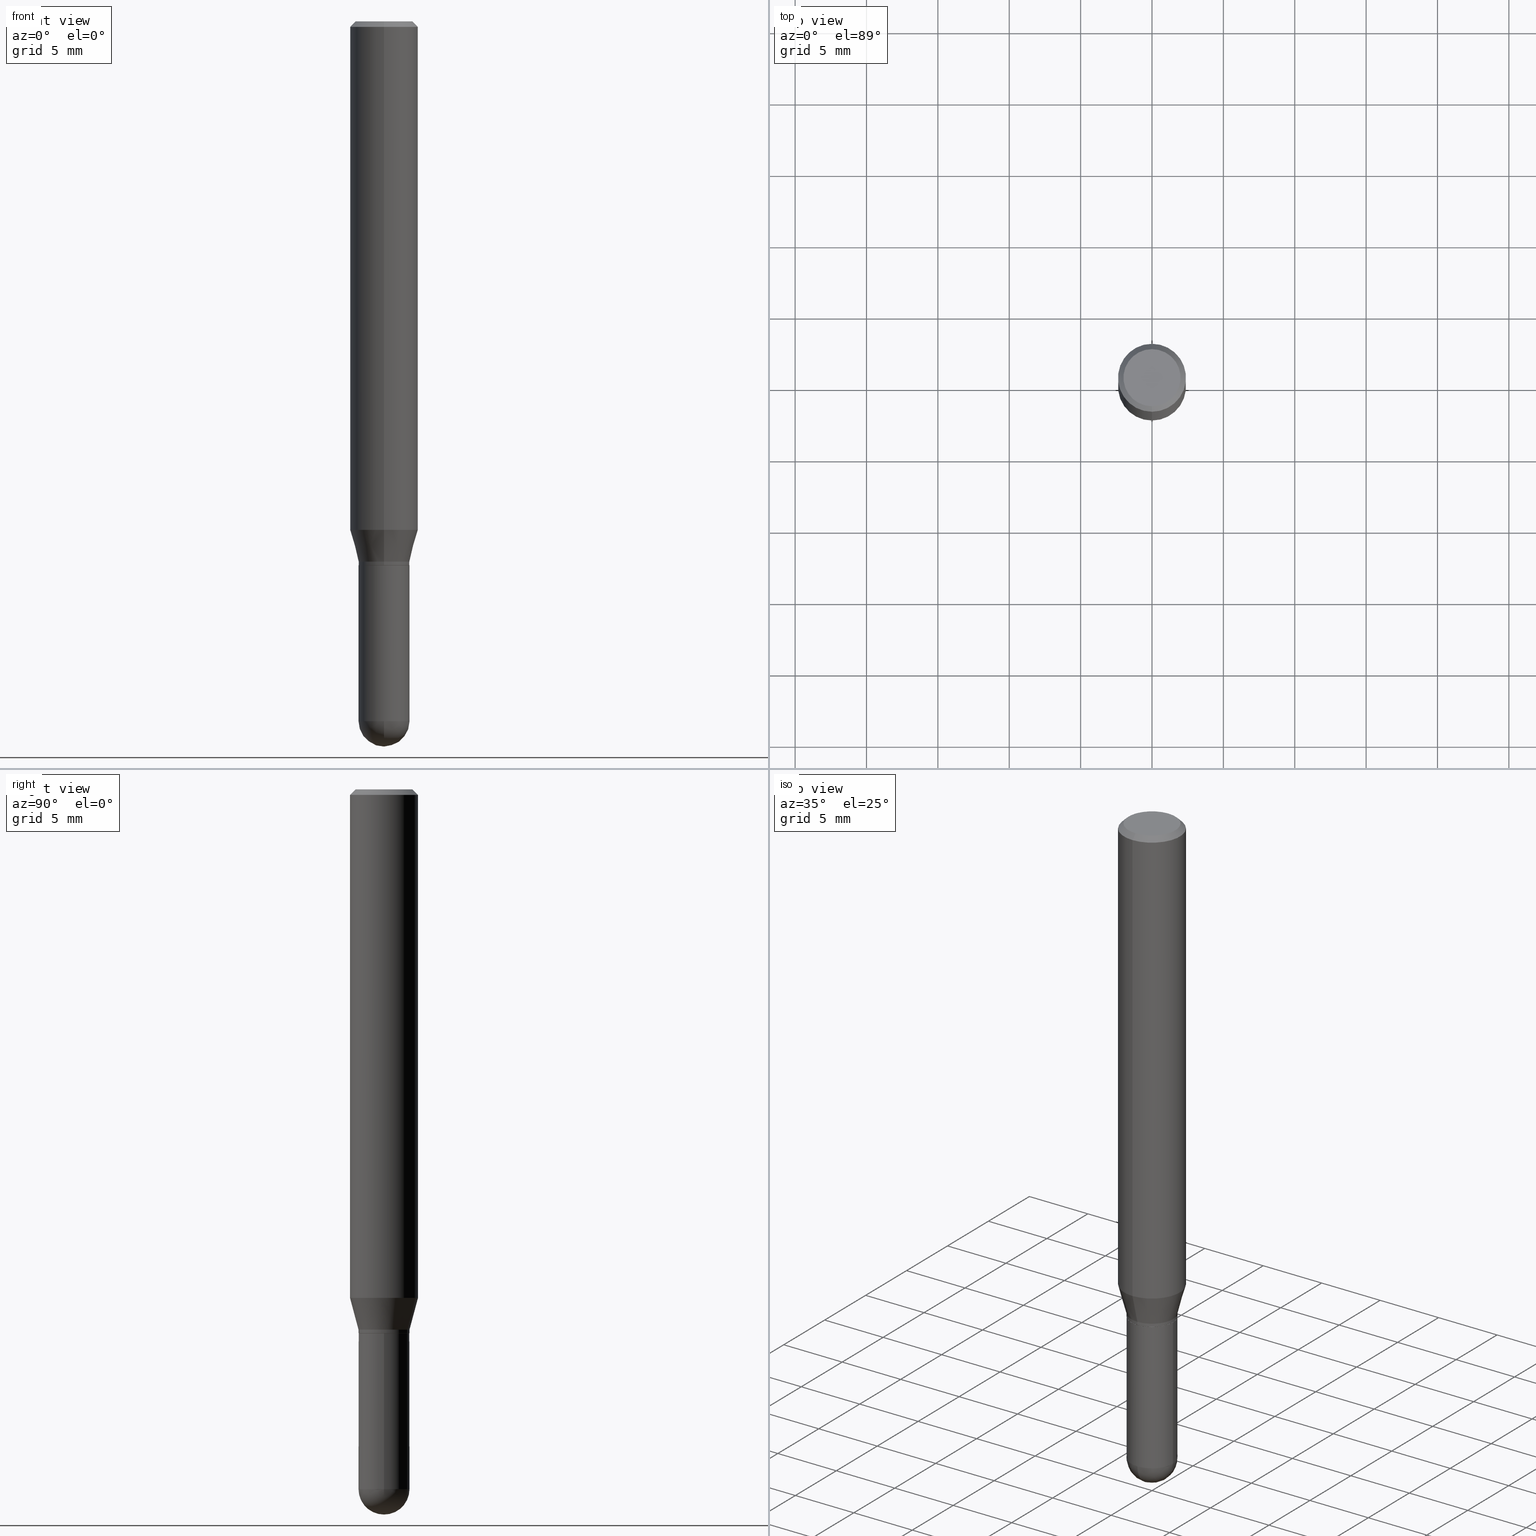
[diagram: canonical four-view strip — front | top / right | iso, engineering-drawing reading convention]
A machine part, canonical four-view strip (front | top / right | iso — engineering-drawing reading convention). The complete STEP part file that produces these views, byte-faithful:
ISO-10303-21;
HEADER;
FILE_DESCRIPTION (( 'STEP AP203' ),
    '1' );
FILE_NAME ('31138.STEP',
    '2024-03-08T15:53:01',
    ( '' ),
    ( '' ),
    'SwSTEP 2.0',
    'SolidWorks 2023',
    '' );
FILE_SCHEMA (( 'CONFIG_CONTROL_DESIGN' ));
ENDSEC;

DATA;
#1 = DIRECTION ( 'NONE',  ( -1.000000000000000000, 6.982962677686265922E-15, -4.883557194083112340E-29 ) ) ;
#2 = ORIENTED_EDGE ( 'NONE', *, *, #352, .F. ) ;
#3 = EDGE_CURVE ( 'NONE', #335, #280, #490, .T. ) ;
#4 = DIRECTION ( 'NONE',  ( -6.982962677686265922E-15, -1.000000000000000000, 3.491768147958502402E-15 ) ) ;
#5 = DIRECTION ( 'NONE',  ( 6.982962677686265922E-15, 1.000000000000000000, -3.483106191921935160E-15 ) ) ;
#6 = ORIENTED_EDGE ( 'NONE', *, *, #220, .T. ) ;
#7 = AXIS2_PLACEMENT_3D ( 'NONE', #18, #463, #422 ) ;
#8 = CARTESIAN_POINT ( 'NONE',  ( 6.546527510330878985E-16, 0.09374999999999995837, -0.01500000000000039496 ) ) ;
#9 = ORIENTED_EDGE ( 'NONE', *, *, #3, .T. ) ;
#10 = ADVANCED_FACE ( 'NONE', ( #451 ), #197, .T. ) ;
#11 = CARTESIAN_POINT ( 'NONE',  ( 3.666680158411255579E-29, -5.235906337863774316E-15, -1.499500000000000055 ) ) ;
#12 = ORIENTED_EDGE ( 'NONE', *, *, #416, .T. ) ;
#13 = AXIS2_PLACEMENT_3D ( 'NONE', #491, #439, #415 ) ;
#14 = CYLINDRICAL_SURFACE ( 'NONE', #477, 0.07030000000000004301 ) ;
#15 = ORIENTED_EDGE ( 'NONE', *, *, #340, .T. ) ;
#16 = AXIS2_PLACEMENT_3D ( 'NONE', #264, #382, #154 ) ;
#17 = VERTEX_POINT ( 'NONE', #65 ) ;
#18 = CARTESIAN_POINT ( 'NONE',  ( 1.673398044682497217E-45, -2.389560869611909586E-31, -6.843412186484920368E-17 ) ) ;
#19 = APPLICATION_PROTOCOL_DEFINITION ( 'international standard', 'config_control_design', 1994, #119 ) ;
#20 = DIRECTION ( 'NONE',  ( -2.445468806185136597E-29, 3.491481338843145583E-15, 1.000000000000000000 ) ) ;
#21 = CIRCLE ( 'NONE', #164, 0.06980000000000005644 ) ;
#22 = ORIENTED_EDGE ( 'NONE', *, *, #68, .F. ) ;
#23 = PERSON_AND_ORGANIZATION ( #307, #146 ) ;
#24 = CARTESIAN_POINT ( 'NONE',  ( 0.07030000000000005689, -5.728124284506063124E-15, -1.499999999999999778 ) ) ;
#25 = DIRECTION ( 'NONE',  ( -6.982962677686265133E-15, -1.000000000000000000, 3.885985766236506175E-15 ) ) ;
#26 = DATE_AND_TIME ( #234, #484 ) ;
#27 = CARTESIAN_POINT ( 'NONE',  ( -0.07030000000000007077, -5.487855230675816416E-15, -1.499999999999999778 ) ) ;
#28 = CALENDAR_DATE ( 2024, 8, 3 ) ;
#29 = LINE ( 'NONE', #155, #54 ) ;
#30 = VECTOR ( 'NONE', #46, 39.37007874015748143 ) ;
#31 = APPROVAL_PERSON_ORGANIZATION ( #458, #343, #271 ) ;
#32 = EDGE_CURVE ( 'NONE', #335, #149, #497, .T. ) ;
#33 = DIRECTION ( 'NONE',  ( 6.982962677686266711E-15, 1.000000000000000000, 0.000000000000000000 ) ) ;
#34 = CIRCLE ( 'NONE', #16, 0.07875000000000001443 ) ;
#35 = CARTESIAN_POINT ( 'NONE',  ( -6.431716872910806895E-16, -0.09375000000000005551, -0.01499999999999974097 ) ) ;
#36 = ORIENTED_EDGE ( 'NONE', *, *, #301, .T. ) ;
#37 = CARTESIAN_POINT ( 'NONE',  ( 4.977351863999869690E-16, 0.06979999999999481064, -1.500000000000000222 ) ) ;
#38 = ADVANCED_FACE ( 'NONE', ( #170 ), #481, .T. ) ;
#39 = AXIS2_PLACEMENT_3D ( 'NONE', #208, #246, #4 ) ;
#40 = ORIENTED_EDGE ( 'NONE', *, *, #295, .T. ) ;
#41 = CARTESIAN_POINT ( 'NONE',  ( 0.07030000000000004301, -4.909022762413449473E-16, 3.427952273384545239E-30 ) ) ;
#42 = DIRECTION ( 'NONE',  ( -6.982962677686265922E-15, -1.000000000000000000, 3.483106191921935160E-15 ) ) ;
#43 = VERTEX_POINT ( 'NONE', #449 ) ;
#44 = AXIS2_PLACEMENT_3D ( 'NONE', #58, #20, #188 ) ;
#45 = ORIENTED_EDGE ( 'NONE', *, *, #356, .T. ) ;
#46 = DIRECTION ( 'NONE',  ( -4.937700262164674260E-15, -0.7071067811865632269, 0.7071067811865319186 ) ) ;
#47 = CLOSED_SHELL ( 'NONE', ( #38, #396, #381, #199, #174, #10, #460, #273, #319, #129, #97, #298 ) ) ;
#48 = ORIENTED_EDGE ( 'NONE', *, *, #447, .F. ) ;
#49 = DIRECTION ( 'NONE',  ( 1.000000000000000000, -6.982962677686261189E-15, 0.000000000000000000 ) ) ;
#50 = ORIENTED_EDGE ( 'NONE', *, *, #90, .T. ) ;
#51 = EDGE_LOOP ( 'NONE', ( #163, #12, #441, #410 ) ) ;
#52 = CIRCLE ( 'NONE', #121, 0.06980000000000005644 ) ;
#53 = VERTEX_POINT ( 'NONE', #445 ) ;
#54 = VECTOR ( 'NONE', #194, 39.37007874015748143 ) ;
#55 = CONICAL_SURFACE ( 'NONE', #169, 0.07029999999999970994, 0.2617993877991510732 ) ;
#56 = DIRECTION ( 'NONE',  ( -2.445468806185136597E-29, 3.491481338843145583E-15, 1.000000000000000000 ) ) ;
#57 = CALENDAR_DATE ( 2024, 8, 3 ) ;
#58 = CARTESIAN_POINT ( 'NONE',  ( 0.000000000000000000, 0.000000000000000000, 0.000000000000000000 ) ) ;
#59 = CC_DESIGN_PERSON_AND_ORGANIZATION_ASSIGNMENT ( #228, #380, ( #92 ) ) ;
#60 = CARTESIAN_POINT ( 'NONE',  ( -6.546527510330530901E-16, -0.09375000000000488498, -1.402483408562508638 ) ) ;
#61 = EDGE_LOOP ( 'NONE', ( #257, #136, #248, #210 ) ) ;
#62 = PERSON_AND_ORGANIZATION ( #307, #146 ) ;
#63 = CARTESIAN_POINT ( 'NONE',  ( 4.719021155295457704E-29, -6.737511539565617508E-15, -1.929699999999999971 ) ) ;
#64 = MECHANICAL_CONTEXT ( 'NONE', #388, 'mechanical' ) ;
#65 = CARTESIAN_POINT ( 'NONE',  ( 5.828226790072563992E-16, 0.07029999999999450577, -1.489999999999999991 ) ) ;
#66 = AXIS2_PLACEMENT_3D ( 'NONE', #489, #368, #49 ) ;
#67 = APPROVAL_STATUS ( 'not_yet_approved' ) ;
#68 = EDGE_CURVE ( 'NONE', #171, #455, #138, .T. ) ;
#69 = DATE_AND_TIME ( #116, #353 ) ;
#70 = DIRECTION ( 'NONE',  ( 1.000000000000000000, -6.982962677686265922E-15, 4.883557194083112340E-29 ) ) ;
#71 = DIRECTION ( 'NONE',  ( 2.445268528450320675E-29, -3.491768147958502797E-15, -1.000000000000000000 ) ) ;
#72 = ORIENTED_EDGE ( 'NONE', *, *, #385, .F. ) ;
#73 = CARTESIAN_POINT ( 'NONE',  ( 4.909022762413816294E-16, 0.07029999999999482496, -1.500000000000000222 ) ) ;
#74 = PLANE ( 'NONE',  #478 ) ;
#75 = CC_DESIGN_PERSON_AND_ORGANIZATION_ASSIGNMENT ( #503, #304, ( #227 ) ) ;
#76 = DIRECTION ( 'NONE',  ( 6.982962677686265922E-15, 1.000000000000000000, -3.491768147958502797E-15 ) ) ;
#77 = DIRECTION ( 'NONE',  ( -1.000000000000000000, 7.105427357601001070E-15, -4.926315508542082329E-29 ) ) ;
#78 = CARTESIAN_POINT ( 'NONE',  ( 6.022805309504406221E-16, 0.07875000000000001443, -3.434108635165813684E-16 ) ) ;
#79 = DIRECTION ( 'NONE',  ( -7.105427357601001859E-15, -1.000000000000000000, 0.000000000000000000 ) ) ;
#80 = ADVANCED_FACE ( 'NONE', ( #336 ), #14, .T. ) ;
#81 = DIRECTION ( 'NONE',  ( -2.445268528450320675E-29, 3.491768147958502797E-15, 1.000000000000000000 ) ) ;
#82 = AXIS2_PLACEMENT_3D ( 'NONE', #316, #71, #236 ) ;
#83 = VERTEX_POINT ( 'NONE', #374 ) ;
#84 = VERTEX_POINT ( 'NONE', #178 ) ;
#85 = CC_DESIGN_DATE_AND_TIME_ASSIGNMENT ( #349, #270, ( #241 ) ) ;
#86 = EDGE_LOOP ( 'NONE', ( #475, #330, #373, #15, #339 ) ) ;
#87 = DIRECTION ( 'NONE',  ( -2.445468806185136597E-29, 3.491481338843145583E-15, 1.000000000000000000 ) ) ;
#88 = FACE_OUTER_BOUND ( 'NONE', #203, .T. ) ;
#89 = ORIENTED_EDGE ( 'NONE', *, *, #217, .T. ) ;
#90 = EDGE_CURVE ( 'NONE', #53, #132, #34, .T. ) ;
#91 = CIRCLE ( 'NONE', #493, 0.07030000000000004301 ) ;
#92 = PRODUCT_DEFINITION_FORMATION_WITH_SPECIFIED_SOURCE ( 'ANY', '', #426, .NOT_KNOWN. ) ;
#93 = CARTESIAN_POINT ( 'NONE',  ( 3.666680158411255579E-29, -5.235906337863774316E-15, -1.499500000000000055 ) ) ;
#94 = CARTESIAN_POINT ( 'NONE',  ( 3.668203209277704335E-29, -5.237222008264717388E-15, -1.499999999999999778 ) ) ;
#95 = ORIENTED_EDGE ( 'NONE', *, *, #470, .F. ) ;
#96 = CLOSED_SHELL ( 'NONE', ( #80, #488, #502, #162, #378 ) ) ;
#97 = ADVANCED_FACE ( 'NONE', ( #326 ), #411, .T. ) ;
#98 = DIRECTION ( 'NONE',  ( -6.982962677686265922E-15, -1.000000000000000000, 3.483106191921935160E-15 ) ) ;
#99 = VERTEX_POINT ( 'NONE', #230 ) ;
#100 = CIRCLE ( 'NONE', #473, 0.07029999999999998750 ) ;
#101 = CARTESIAN_POINT ( 'NONE',  ( 0.000000000000000000, 0.000000000000000000, 0.000000000000000000 ) ) ;
#102 = CARTESIAN_POINT ( 'NONE',  ( -4.909022762413433696E-16, -0.07029999999999984872, 2.454713008014822219E-16 ) ) ;
#103 = DIRECTION ( 'NONE',  ( -6.982962677686265922E-15, -1.000000000000000000, 3.913822340493210566E-15 ) ) ;
#104 = CIRCLE ( 'NONE', #443, 0.07030000000000002913 ) ;
#105 = AXIS2_PLACEMENT_3D ( 'NONE', #355, #1, #159 ) ;
#106 = EDGE_CURVE ( 'NONE', #499, #117, #29, .T. ) ;
#107 = CARTESIAN_POINT ( 'NONE',  ( 0.000000000000000000, 0.000000000000000000, 0.000000000000000000 ) ) ;
#108 = ORIENTED_EDGE ( 'NONE', *, *, #106, .T. ) ;
#109 =( NAMED_UNIT ( * ) PLANE_ANGLE_UNIT ( ) SI_UNIT ( $, .RADIAN. ) );
#110 = CIRCLE ( 'NONE', #392, 0.07030000000000005689 ) ;
#111 = VECTOR ( 'NONE', #487, 39.37007874015748143 ) ;
#112 = LINE ( 'NONE', #8, #402 ) ;
#113 = COORDINATED_UNIVERSAL_TIME_OFFSET ( 5, 0, .BEHIND. ) ;
#114 = ORIENTED_EDGE ( 'NONE', *, *, #508, .F. ) ;
#115 = EDGE_CURVE ( 'NONE', #99, #43, #104, .T. ) ;
#116 = CALENDAR_DATE ( 2024, 8, 3 ) ;
#117 = VERTEX_POINT ( 'NONE', #196 ) ;
#118 = EDGE_CURVE ( 'NONE', #229, #171, #322, .T. ) ;
#119 = APPLICATION_CONTEXT ( 'configuration controlled 3d designs of mechanical parts and assemblies' ) ;
#120 = CARTESIAN_POINT ( 'NONE',  ( -6.546527510330875041E-16, -0.09375000000000001388, 3.273532638711096618E-16 ) ) ;
#121 = AXIS2_PLACEMENT_3D ( 'NONE', #387, #348, #501 ) ;
#122 = CARTESIAN_POINT ( 'NONE',  ( 4.755767650741496407E-29, -6.684888466606255625E-15, -1.929699999999999971 ) ) ;
#123 = DIMENSIONAL_EXPONENTS ( 1.000000000000000000, 0.000000000000000000, 0.000000000000000000, 0.000000000000000000, 0.000000000000000000, 0.000000000000000000, 0.000000000000000000 ) ;
#124 = EDGE_LOOP ( 'NONE', ( #437, #276, #242, #89 ) ) ;
#125 = DIRECTION ( 'NONE',  ( -1.000000000000000000, 6.982962677686265922E-15, -4.883557194083112340E-29 ) ) ;
#126 = AXIS2_PLACEMENT_3D ( 'NONE', #161, #471, #288 ) ;
#127 = EDGE_LOOP ( 'NONE', ( #95, #509, #324, #290 ) ) ;
#128 = FACE_OUTER_BOUND ( 'NONE', #486, .T. ) ;
#129 = ADVANCED_FACE ( 'NONE', ( #277 ), #74, .F. ) ;
#130 = LINE ( 'NONE', #35, #459 ) ;
#131 = CARTESIAN_POINT ( 'NONE',  ( -4.995115432393033060E-16, -0.07030000000000674598, -1.929699999999999527 ) ) ;
#132 = VERTEX_POINT ( 'NONE', #78 ) ;
#133 = ORIENTED_EDGE ( 'NONE', *, *, #115, .F. ) ;
#134 = APPROVAL_DATE_TIME ( #476, #291 ) ;
#135 = CARTESIAN_POINT ( 'NONE',  ( -4.874107949024650610E-16, -0.06980000000000530225, -1.499999999999999556 ) ) ;
#136 = ORIENTED_EDGE ( 'NONE', *, *, #447, .T. ) ;
#137 = VECTOR ( 'NONE', #386, 39.37007874015748143 ) ;
#138 = CIRCLE ( 'NONE', #180, 0.09375000000000001388 ) ;
#139 = ORIENTED_EDGE ( 'NONE', *, *, #118, .T. ) ;
#140 = CARTESIAN_POINT ( 'NONE',  ( 4.719021155295457704E-29, -6.737511539565617508E-15, -1.929699999999999971 ) ) ;
#141 = CARTESIAN_POINT ( 'NONE',  ( 0.000000000000000000, 0.000000000000000000, 0.000000000000000000 ) ) ;
#142 = CARTESIAN_POINT ( 'NONE',  ( -0.07030000000000004301, 4.995115432393507363E-16, -3.458011368449201672E-30 ) ) ;
#143 = FACE_OUTER_BOUND ( 'NONE', #279, .T. ) ;
#144 = SECURITY_CLASSIFICATION_LEVEL ( 'unclassified' ) ;
#145 = CARTESIAN_POINT ( 'NONE',  ( 6.661338147750938256E-16, 0.09375000000000001388, -3.273532638711096618E-16 ) ) ;
#146 = ORGANIZATION ( 'UNSPECIFIED', 'UNSPECIFIED', '' ) ;
#147 = LOCAL_TIME ( 10, 53, 1.000000000000000000, #311 ) ;
#148 = DIRECTION ( 'NONE',  ( 1.000000000000000000, -6.982962677686268288E-15, 4.876176775795936353E-29 ) ) ;
#149 = VERTEX_POINT ( 'NONE', #131 ) ;
#150 = VECTOR ( 'NONE', #303, 39.37007874015748143 ) ;
#151 = AXIS2_PLACEMENT_3D ( 'NONE', #364, #87, #167 ) ;
#152 = DIRECTION ( 'NONE',  ( -2.445268528450320395E-29, 3.491768147958502797E-15, 1.000000000000000000 ) ) ;
#153 = MANIFOLD_SOLID_BREP ( 'Body-Move/Copy2[1]', #96 ) ;
#154 = DIRECTION ( 'NONE',  ( -6.982962677686264344E-15, -1.000000000000000000, 3.491768147958503191E-15 ) ) ;
#155 = CARTESIAN_POINT ( 'NONE',  ( 4.959588295605870128E-16, 0.06979999999999481064, -1.500000000000000222 ) ) ;
#156 = DIRECTION ( 'NONE',  ( -6.982962677686265922E-15, -1.000000000000000000, 3.885985766236521163E-15 ) ) ;
#157 = CIRCLE ( 'NONE', #344, 0.09375000000000001388 ) ;
#158 = APPROVAL_PERSON_ORGANIZATION ( #421, #291, #233 ) ;
#159 = DIRECTION ( 'NONE',  ( 6.982962677686265922E-15, 1.000000000000000000, -3.885985766236503808E-15 ) ) ;
#160 = FACE_OUTER_BOUND ( 'NONE', #305, .T. ) ;
#161 = CARTESIAN_POINT ( 'NONE',  ( 3.643450107390976951E-29, -5.202734540458167266E-15, -1.489999999999999769 ) ) ;
#162 = ADVANCED_FACE ( 'NONE', ( #160 ), #239, .T. ) ;
#163 = ORIENTED_EDGE ( 'NONE', *, *, #232, .F. ) ;
#164 = AXIS2_PLACEMENT_3D ( 'NONE', #452, #436, #103 ) ;
#165 = VERTEX_POINT ( 'NONE', #327 ) ;
#166 = DIRECTION ( 'NONE',  ( 4.937700262164546464E-15, 0.7071067811865449082, -0.7071067811865501263 ) ) ;
#167 = DIRECTION ( 'NONE',  ( 1.000000000000000000, -6.982962677686261189E-15, 0.000000000000000000 ) ) ;
#168 = ORIENTED_EDGE ( 'NONE', *, *, #385, .T. ) ;
#169 = AXIS2_PLACEMENT_3D ( 'NONE', #332, #511, #431 ) ;
#170 = FACE_OUTER_BOUND ( 'NONE', #472, .T. ) ;
#171 = VERTEX_POINT ( 'NONE', #391 ) ;
#172 = DIRECTION ( 'NONE',  ( -4.851104656540962697E-15, -0.7071067811865497932, -0.7071067811865452413 ) ) ;
#173 = DIRECTION ( 'NONE',  ( -2.445268528450320675E-29, 3.491768147958502797E-15, 1.000000000000000000 ) ) ;
#174 = ADVANCED_FACE ( 'NONE', ( #357 ), #55, .T. ) ;
#175 = AXIS2_PLACEMENT_3D ( 'NONE', #185, #318, #76 ) ;
#176 = ORIENTED_EDGE ( 'NONE', *, *, #68, .T. ) ;
#177 = CC_DESIGN_APPROVAL ( #343, ( #92 ) ) ;
#178 = CARTESIAN_POINT ( 'NONE',  ( 0.07030000000000004301, -6.478269050156512001E-15, -1.929699999999999971 ) ) ;
#179 = DIRECTION ( 'NONE',  ( -2.445468806185136597E-29, 3.491481338843145583E-15, 1.000000000000000000 ) ) ;
#180 = AXIS2_PLACEMENT_3D ( 'NONE', #186, #406, #98 ) ;
#181 = ORIENTED_EDGE ( 'NONE', *, *, #90, .F. ) ;
#182 = EDGE_CURVE ( 'NONE', #229, #165, #359, .T. ) ;
#183 = DIRECTION ( 'NONE',  ( 0.000000000000000000, 0.000000000000000000, 1.000000000000000000 ) ) ;
#184 = PRODUCT_RELATED_PRODUCT_CATEGORY ( 'detail', '', ( #426 ) ) ;
#185 = CARTESIAN_POINT ( 'NONE',  ( 5.499083108677934443E-16, 0.07875000000000001443, -3.091938025841567235E-16 ) ) ;
#186 = CARTESIAN_POINT ( 'NONE',  ( 3.667902792675498004E-31, -5.237652221937778058E-17, -0.01500000000000006883 ) ) ;
#187 = DIRECTION ( 'NONE',  ( -2.445268528450320675E-29, 3.491768147958502797E-15, 1.000000000000000000 ) ) ;
#188 = DIRECTION ( 'NONE',  ( 1.000000000000000000, -6.982962677686268288E-15, 4.876176775795936353E-29 ) ) ;
#189 = AXIS2_PLACEMENT_3D ( 'NONE', #140, #306, #417 ) ;
#190 = ORIENTED_EDGE ( 'NONE', *, *, #182, .T. ) ;
#191 = PERSON_AND_ORGANIZATION ( #307, #146 ) ;
#192 = DIRECTION ( 'NONE',  ( -2.445468806185136597E-29, 3.491481338843145583E-15, 1.000000000000000000 ) ) ;
#193 = APPLICATION_PROTOCOL_DEFINITION ( 'international standard', 'config_control_design', 1994, #388 ) ;
#194 = DIRECTION ( 'NONE',  ( 5.024295867788190974E-15, 0.7071067811865681119, 0.7071067811865270336 ) ) ;
#195 = CIRCLE ( 'NONE', #151, 0.07030000000000004301 ) ;
#196 = CARTESIAN_POINT ( 'NONE',  ( 4.995115432393871225E-16, 0.07029999999999476945, -1.499500000000000277 ) ) ;
#197 = CONICAL_SURFACE ( 'NONE', #214, 0.07029999999999970994, 0.2617993877991510732 ) ;
#198 = DIRECTION ( 'NONE',  ( -6.982962677686265922E-15, -1.000000000000000000, 3.913822340493210566E-15 ) ) ;
#199 = ADVANCED_FACE ( 'NONE', ( #469 ), #361, .T. ) ;
#200 = FACE_OUTER_BOUND ( 'NONE', #309, .T. ) ;
#201 = DIRECTION ( 'NONE',  ( -6.982962677686265922E-15, -1.000000000000000000, 3.491768147958502797E-15 ) ) ;
#202 = CIRCLE ( 'NONE', #218, 0.07029999999999998750 ) ;
#203 = EDGE_LOOP ( 'NONE', ( #317, #213, #139, #221 ) ) ;
#204 = ORIENTED_EDGE ( 'NONE', *, *, #462, .F. ) ;
#205 = PLANE ( 'NONE',  #323 ) ;
#206 = AXIS2_PLACEMENT_3D ( 'NONE', #141, #173, #371 ) ;
#207 = EDGE_CURVE ( 'NONE', #17, #83, #219, .T. ) ;
#208 = CARTESIAN_POINT ( 'NONE',  ( 0.000000000000000000, 0.000000000000000000, 0.000000000000000000 ) ) ;
#209 = ORIENTED_EDGE ( 'NONE', *, *, #442, .F. ) ;
#210 = ORIENTED_EDGE ( 'NONE', *, *, #416, .F. ) ;
#211 = DIRECTION ( 'NONE',  ( -2.445468806185136877E-29, 3.491481338843145188E-15, 1.000000000000000000 ) ) ;
#212 = CC_DESIGN_APPROVAL ( #383, ( #241 ) ) ;
#213 = ORIENTED_EDGE ( 'NONE', *, *, #252, .T. ) ;
#214 = AXIS2_PLACEMENT_3D ( 'NONE', #260, #287, #249 ) ;
#215 = ORIENTED_EDGE ( 'NONE', *, *, #231, .F. ) ;
#216 = DIRECTION ( 'NONE',  ( -6.982962677686265922E-15, -1.000000000000000000, 3.491768147958502402E-15 ) ) ;
#217 = EDGE_CURVE ( 'NONE', #455, #171, #157, .T. ) ;
#218 = AXIS2_PLACEMENT_3D ( 'NONE', #93, #480, #310 ) ;
#219 = CIRCLE ( 'NONE', #126, 0.07029999999999970994 ) ;
#220 = EDGE_CURVE ( 'NONE', #280, #468, #110, .T. ) ;
#221 = ORIENTED_EDGE ( 'NONE', *, *, #217, .F. ) ;
#222 = DIRECTION ( 'NONE',  ( 1.000000000000000000, -6.982962677686273810E-15, 0.000000000000000000 ) ) ;
#223 = CARTESIAN_POINT ( 'NONE',  ( 6.661338147751283383E-16, 0.09374999999999994449, -0.01500000000000039496 ) ) ;
#224 = PERSON_AND_ORGANIZATION ( #307, #146 ) ;
#225 = CARTESIAN_POINT ( 'NONE',  ( 4.995115432393492572E-16, 0.07029999999999984872, -2.454713008014822219E-16 ) ) ;
#226 = CONICAL_SURFACE ( 'NONE', #440, 0.09375000000000001388, 0.7853981633974480570 ) ;
#227 = SECURITY_CLASSIFICATION ( '', '', #144 ) ;
#228 = PERSON_AND_ORGANIZATION ( #307, #146 ) ;
#229 = VERTEX_POINT ( 'NONE', #60 ) ;
#230 = CARTESIAN_POINT ( 'NONE',  ( 4.930690017322777259E-29, -6.926034971227925253E-15, -2.000000000000000000 ) ) ;
#231 = EDGE_CURVE ( 'NONE', #482, #83, #450, .T. ) ;
#232 = EDGE_CURVE ( 'NONE', #117, #17, #345, .T. ) ;
#233 = APPROVAL_ROLE ( '' ) ;
#234 = CALENDAR_DATE ( 2024, 8, 3 ) ;
#235 = CIRCLE ( 'NONE', #268, 0.07029999999999970994 ) ;
#236 = DIRECTION ( 'NONE',  ( 6.982962677686265922E-15, 1.000000000000000000, -3.483106191921935160E-15 ) ) ;
#237 = DIRECTION ( 'NONE',  ( -2.445268528450320675E-29, 3.491768147958502797E-15, 1.000000000000000000 ) ) ;
#238 = DIRECTION ( 'NONE',  ( 2.438088387897960049E-29, -3.491481338843145188E-15, -1.000000000000000000 ) ) ;
#239 = SPHERICAL_SURFACE ( 'NONE', #105, 0.07030000000000002913 ) ;
#240 = CONICAL_SURFACE ( 'NONE', #13, 0.06980000000000005644, 0.7853981633974739252 ) ;
#241 = PRODUCT_DEFINITION ( 'UNKNOWN', '', #92, #512 ) ;
#242 = ORIENTED_EDGE ( 'NONE', *, *, #283, .T. ) ;
#243 = ORIENTED_EDGE ( 'NONE', *, *, #281, .F. ) ;
#244 = DIRECTION ( 'NONE',  ( -2.445468806185136597E-29, 3.491481338843145583E-15, 1.000000000000000000 ) ) ;
#245 =( LENGTH_UNIT ( ) NAMED_UNIT ( * ) SI_UNIT ( $, .METRE. ) );
#246 = DIRECTION ( 'NONE',  ( -2.445268528450320675E-29, 3.491768147958502797E-15, 1.000000000000000000 ) ) ;
#247 = UNCERTAINTY_MEASURE_WITH_UNIT (LENGTH_MEASURE( 1.000000000000000082E-05 ), #434, 'distance_accuracy_value', 'NONE');
#248 = ORIENTED_EDGE ( 'NONE', *, *, #442, .T. ) ;
#249 = DIRECTION ( 'NONE',  ( -6.982962677686265922E-15, -1.000000000000000000, 3.885985766236521163E-15 ) ) ;
#250 = ORIENTED_EDGE ( 'NONE', *, *, #474, .T. ) ;
#251 = AXIS2_PLACEMENT_3D ( 'NONE', #293, #401, #216 ) ;
#252 = EDGE_CURVE ( 'NONE', #165, #229, #337, .T. ) ;
#253 = EDGE_LOOP ( 'NONE', ( #181, #40, #176, #296 ) ) ;
#254 = CYLINDRICAL_SURFACE ( 'NONE', #350, 0.07029999999999984872 ) ;
#255 = CC_DESIGN_PERSON_AND_ORGANIZATION_ASSIGNMENT ( #23, #347, ( #241 ) ) ;
#256 = CIRCLE ( 'NONE', #189, 0.07030000000000004301 ) ;
#257 = ORIENTED_EDGE ( 'NONE', *, *, #106, .F. ) ;
#258 = CC_DESIGN_SECURITY_CLASSIFICATION ( #227, ( #92 ) ) ;
#259 = CARTESIAN_POINT ( 'NONE',  ( 0.000000000000000000, 0.000000000000000000, 0.000000000000000000 ) ) ;
#260 = CARTESIAN_POINT ( 'NONE',  ( 3.643450107390976951E-29, -5.202734540458167266E-15, -1.489999999999999769 ) ) ;
#261 = DATE_AND_TIME ( #453, #314 ) ;
#262 = DIRECTION ( 'NONE',  ( 2.445268528450320675E-29, -3.491768147958502797E-15, -1.000000000000000000 ) ) ;
#263 = CC_DESIGN_DATE_AND_TIME_ASSIGNMENT ( #261, #412, ( #227 ) ) ;
#264 = CARTESIAN_POINT ( 'NONE',  ( 1.673398044682497217E-45, -2.389560869611909586E-31, -6.843412186484920368E-17 ) ) ;
#265 = LINE ( 'NONE', #506, #312 ) ;
#266 = EDGE_LOOP ( 'NONE', ( #300, #308, #397, #204 ) ) ;
#267 = APPROVAL_STATUS ( 'not_yet_approved' ) ;
#268 = AXIS2_PLACEMENT_3D ( 'NONE', #354, #433, #156 ) ;
#269 = DIRECTION ( 'NONE',  ( -6.982962677686265133E-15, -1.000000000000000000, 3.491768147958502797E-15 ) ) ;
#270 = DATE_TIME_ROLE ( 'creation_date' ) ;
#271 = APPROVAL_ROLE ( '' ) ;
#272 = CARTESIAN_POINT ( 'NONE',  ( 4.755767650741496407E-29, -6.684888466606255625E-15, -1.929699999999999971 ) ) ;
#273 = ADVANCED_FACE ( 'NONE', ( #275 ), #504, .T. ) ;
#274 = CARTESIAN_POINT ( 'NONE',  ( 4.995115432393847559E-16, 0.07029999999999450577, -1.489999999999999991 ) ) ;
#275 = FACE_OUTER_BOUND ( 'NONE', #124, .T. ) ;
#276 = ORIENTED_EDGE ( 'NONE', *, *, #301, .F. ) ;
#277 = FACE_OUTER_BOUND ( 'NONE', #346, .T. ) ;
#278 = AXIS2_PLACEMENT_3D ( 'NONE', #498, #418, #379 ) ;
#279 = EDGE_LOOP ( 'NONE', ( #328, #108, #72, #209 ) ) ;
#280 = VERTEX_POINT ( 'NONE', #27 ) ;
#281 = EDGE_CURVE ( 'NONE', #286, #499, #52, .T. ) ;
#282 = CARTESIAN_POINT ( 'NONE',  ( 4.755767650741496407E-29, -6.684888466606255625E-15, -1.929699999999999971 ) ) ;
#283 = EDGE_CURVE ( 'NONE', #132, #455, #112, .T. ) ;
#284 = VECTOR ( 'NONE', #187, 39.37007874015748143 ) ;
#285 = DIRECTION ( 'NONE',  ( -6.982962677686265922E-15, -1.000000000000000000, 2.913971193241880372E-15 ) ) ;
#286 = VERTEX_POINT ( 'NONE', #389 ) ;
#287 = DIRECTION ( 'NONE',  ( -2.445268528450320675E-29, 3.491768147958502797E-15, 1.000000000000000000 ) ) ;
#288 = DIRECTION ( 'NONE',  ( -6.982962677686265922E-15, -1.000000000000000000, 3.885985766236521163E-15 ) ) ;
#289 = EDGE_LOOP ( 'NONE', ( #190, #45, #22, #429 ) ) ;
#290 = ORIENTED_EDGE ( 'NONE', *, *, #252, .F. ) ;
#291 = APPROVAL ( #67, 'UNSPECIFIED' ) ;
#292 = SHAPE_DEFINITION_REPRESENTATION ( #360, #507 ) ;
#293 = CARTESIAN_POINT ( 'NONE',  ( 0.000000000000000000, 0.000000000000000000, 0.000000000000000000 ) ) ;
#294 = VECTOR ( 'NONE', #457, 39.37007874015748143 ) ;
#295 = EDGE_CURVE ( 'NONE', #53, #171, #130, .T. ) ;
#296 = ORIENTED_EDGE ( 'NONE', *, *, #283, .F. ) ;
#297 = AXIS2_PLACEMENT_3D ( 'NONE', #325, #81, #285 ) ;
#298 = ADVANCED_FACE ( 'NONE', ( #444 ), #254, .T. ) ;
#299 = LINE ( 'NONE', #41, #483 ) ;
#300 = ORIENTED_EDGE ( 'NONE', *, *, #508, .T. ) ;
#301 = EDGE_CURVE ( 'NONE', #132, #53, #370, .T. ) ;
#302 = AXIS2_PLACEMENT_3D ( 'NONE', #94, #244, #338 ) ;
#303 = DIRECTION ( 'NONE',  ( -2.445468806185136877E-29, 3.491481338843145188E-15, 1.000000000000000000 ) ) ;
#304 = PERSON_AND_ORGANIZATION_ROLE ( 'classification_officer' ) ;
#305 = EDGE_LOOP ( 'NONE', ( #400, #395, #408, #2 ) ) ;
#306 = DIRECTION ( 'NONE',  ( -2.445468806185136597E-29, 3.491481338843145583E-15, 1.000000000000000000 ) ) ;
#307 = PERSON ( 'UNSPECIFIED', 'UNSPECIFIED', 'UNSPECIFIED', ('UNSPECIFIED'), ('UNSPECIFIED'), ('UNSPECIFIED') ) ;
#308 = ORIENTED_EDGE ( 'NONE', *, *, #470, .T. ) ;
#309 = EDGE_LOOP ( 'NONE', ( #424, #6 ) ) ;
#310 = DIRECTION ( 'NONE',  ( -6.982962677686265133E-15, -1.000000000000000000, 3.885985766236506175E-15 ) ) ;
#311 = COORDINATED_UNIVERSAL_TIME_OFFSET ( 5, 0, .BEHIND. ) ;
#312 = VECTOR ( 'NONE', #321, 39.37007874015748854 ) ;
#313 = APPROVAL_ROLE ( '' ) ;
#314 = LOCAL_TIME ( 10, 53, 1.000000000000000000, #113 ) ;
#315 = MANIFOLD_SOLID_BREP ( 'Body-Move/Copy2[2]', #47 ) ;
#316 = CARTESIAN_POINT ( 'NONE',  ( 3.667902792675498004E-31, -5.237652221937778058E-17, -0.01500000000000006883 ) ) ;
#317 = ORIENTED_EDGE ( 'NONE', *, *, #356, .F. ) ;
#318 = DIRECTION ( 'NONE',  ( 2.445268528450320395E-29, -3.491768147958502797E-15, -1.000000000000000000 ) ) ;
#319 = ADVANCED_FACE ( 'NONE', ( #320 ), #465, .F. ) ;
#320 = FACE_OUTER_BOUND ( 'NONE', #369, .T. ) ;
#321 = DIRECTION ( 'NONE',  ( -1.807323732225335661E-15, -0.2588190451025189631, 0.9659258262890687563 ) ) ;
#322 = LINE ( 'NONE', #120, #420 ) ;
#323 = AXIS2_PLACEMENT_3D ( 'NONE', #73, #238, #358 ) ;
#324 = ORIENTED_EDGE ( 'NONE', *, *, #462, .T. ) ;
#325 = CARTESIAN_POINT ( 'NONE',  ( 3.429448540631636149E-29, -4.897146894058840106E-15, -1.402483408562508860 ) ) ;
#326 = FACE_OUTER_BOUND ( 'NONE', #61, .T. ) ;
#327 = CARTESIAN_POINT ( 'NONE',  ( 6.661338147751283383E-16, 0.09374999999999512890, -1.402483408562509304 ) ) ;
#328 = ORIENTED_EDGE ( 'NONE', *, *, #281, .T. ) ;
#329 = EDGE_CURVE ( 'NONE', #468, #280, #409, .T. ) ;
#330 = ORIENTED_EDGE ( 'NONE', *, *, #32, .T. ) ;
#331 = LOCAL_TIME ( 10, 53, 1.000000000000000000, #384 ) ;
#332 = CARTESIAN_POINT ( 'NONE',  ( 3.643450107390976951E-29, -5.202734540458167266E-15, -1.489999999999999769 ) ) ;
#333 = ORIENTED_EDGE ( 'NONE', *, *, #340, .F. ) ;
#334 = AXIS2_PLACEMENT_3D ( 'NONE', #427, #237, #198 ) ;
#335 = VERTEX_POINT ( 'NONE', #485 ) ;
#336 = FACE_OUTER_BOUND ( 'NONE', #366, .T. ) ;
#337 = CIRCLE ( 'NONE', #278, 0.09375000000000001388 ) ;
#338 = DIRECTION ( 'NONE',  ( 1.000000000000000000, -6.982962677686273810E-15, 0.000000000000000000 ) ) ;
#339 = ORIENTED_EDGE ( 'NONE', *, *, #220, .F. ) ;
#340 = EDGE_CURVE ( 'NONE', #84, #468, #299, .T. ) ;
#341 = LINE ( 'NONE', #145, #111 ) ;
#342 = APPROVAL_DATE_TIME ( #69, #383 ) ;
#343 = APPROVAL ( #267, 'UNSPECIFIED' ) ;
#344 = AXIS2_PLACEMENT_3D ( 'NONE', #435, #399, #42 ) ;
#345 = LINE ( 'NONE', #225, #294 ) ;
#346 = EDGE_LOOP ( 'NONE', ( #243, #48 ) ) ;
#347 = PERSON_AND_ORGANIZATION_ROLE ( 'creator' ) ;
#348 = DIRECTION ( 'NONE',  ( -2.445268528450320675E-29, 3.491768147958502797E-15, 1.000000000000000000 ) ) ;
#349 = DATE_AND_TIME ( #57, #147 ) ;
#350 = AXIS2_PLACEMENT_3D ( 'NONE', #101, #496, #269 ) ;
#351 = PERSON_AND_ORGANIZATION_ROLE ( 'design_supplier' ) ;
#352 = EDGE_CURVE ( 'NONE', #149, #84, #195, .T. ) ;
#353 = LOCAL_TIME ( 10, 53, 1.000000000000000000, #461 ) ;
#354 = CARTESIAN_POINT ( 'NONE',  ( 3.643450107390976951E-29, -5.202734540458167266E-15, -1.489999999999999769 ) ) ;
#355 = CARTESIAN_POINT ( 'NONE',  ( 4.755767650741496407E-29, -6.684888466606255625E-15, -1.929699999999999971 ) ) ;
#356 = EDGE_CURVE ( 'NONE', #165, #455, #341, .T. ) ;
#357 = FACE_OUTER_BOUND ( 'NONE', #266, .T. ) ;
#358 = DIRECTION ( 'NONE',  ( -1.000000000000000000, 6.982962677686265922E-15, -4.876176775795935793E-29 ) ) ;
#359 = CIRCLE ( 'NONE', #297, 0.09375000000000001388 ) ;
#360 = PRODUCT_DEFINITION_SHAPE ( 'NONE', 'NONE',  #241 ) ;
#361 = CYLINDRICAL_SURFACE ( 'NONE', #39, 0.09375000000000001388 ) ;
#362 = ORIENTED_EDGE ( 'NONE', *, *, #376, .T. ) ;
#363 = CC_DESIGN_PERSON_AND_ORGANIZATION_ASSIGNMENT ( #191, #464, ( #426 ) ) ;
#364 = CARTESIAN_POINT ( 'NONE',  ( 4.719021155295457704E-29, -6.737511539565617508E-15, -1.929699999999999971 ) ) ;
#365 =( GEOMETRIC_REPRESENTATION_CONTEXT ( 3 ) GLOBAL_UNCERTAINTY_ASSIGNED_CONTEXT ( ( #247 ) ) GLOBAL_UNIT_ASSIGNED_CONTEXT ( ( #434, #109, #500 ) ) REPRESENTATION_CONTEXT ( 'NONE', 'WORKASPACE' ) );
#366 = EDGE_LOOP ( 'NONE', ( #414, #9, #407, #333, #362 ) ) ;
#367 = LINE ( 'NONE', #135, #30 ) ;
#368 = DIRECTION ( 'NONE',  ( -2.445468806185136597E-29, 3.491481338843145583E-15, 1.000000000000000000 ) ) ;
#369 = EDGE_LOOP ( 'NONE', ( #36, #50 ) ) ;
#370 = CIRCLE ( 'NONE', #7, 0.07875000000000001443 ) ;
#371 = DIRECTION ( 'NONE',  ( -6.982962677686265133E-15, -1.000000000000000000, 3.491768147958502797E-15 ) ) ;
#372 = CARTESIAN_POINT ( 'NONE',  ( 3.668203209277704335E-29, -5.237222008264717388E-15, -1.499999999999999778 ) ) ;
#373 = ORIENTED_EDGE ( 'NONE', *, *, #352, .T. ) ;
#374 = CARTESIAN_POINT ( 'NONE',  ( -4.909022762413059973E-16, -0.07030000000000491411, -1.489999999999999325 ) ) ;
#375 = CYLINDRICAL_SURFACE ( 'NONE', #251, 0.09375000000000001388 ) ;
#376 = EDGE_CURVE ( 'NONE', #84, #43, #256, .T. ) ;
#377 = APPROVAL_STATUS ( 'not_yet_approved' ) ;
#378 = ADVANCED_FACE ( 'NONE', ( #454 ), #413, .T. ) ;
#379 = DIRECTION ( 'NONE',  ( -6.982962677686265922E-15, -1.000000000000000000, 2.913971193241880372E-15 ) ) ;
#380 = PERSON_AND_ORGANIZATION_ROLE ( 'creator' ) ;
#381 = ADVANCED_FACE ( 'NONE', ( #495 ), #226, .T. ) ;
#382 = DIRECTION ( 'NONE',  ( -2.445268528450320675E-29, 3.491768147958502797E-15, 1.000000000000000000 ) ) ;
#383 = APPROVAL ( #377, 'UNSPECIFIED' ) ;
#384 = COORDINATED_UNIVERSAL_TIME_OFFSET ( 5, 0, .BEHIND. ) ;
#385 = EDGE_CURVE ( 'NONE', #482, #117, #100, .T. ) ;
#386 = DIRECTION ( 'NONE',  ( 1.839019923739605837E-15, 0.2588190451025257355, 0.9659258262890669799 ) ) ;
#387 = CARTESIAN_POINT ( 'NONE',  ( 3.667902792675480032E-29, -5.237652221937753012E-15, -1.499999999999999778 ) ) ;
#388 = APPLICATION_CONTEXT ( 'configuration controlled 3d designs of mechanical parts and assemblies' ) ;
#389 = CARTESIAN_POINT ( 'NONE',  ( -4.874107949024650610E-16, -0.06980000000000530225, -1.499999999999999556 ) ) ;
#390 = CARTESIAN_POINT ( 'NONE',  ( 3.667902792675480032E-29, -5.237652221937753012E-15, -1.499999999999999778 ) ) ;
#391 = CARTESIAN_POINT ( 'NONE',  ( -6.546527510330871097E-16, -0.09375000000000005551, -0.01499999999999974097 ) ) ;
#392 = AXIS2_PLACEMENT_3D ( 'NONE', #372, #179, #222 ) ;
#393 = DIRECTION ( 'NONE',  ( 6.982962677686265922E-15, 1.000000000000000000, -3.885985766236503808E-15 ) ) ;
#394 = APPROVAL_PERSON_ORGANIZATION ( #62, #383, #313 ) ;
#395 = ORIENTED_EDGE ( 'NONE', *, *, #115, .T. ) ;
#396 = ADVANCED_FACE ( 'NONE', ( #143 ), #240, .T. ) ;
#397 = ORIENTED_EDGE ( 'NONE', *, *, #182, .F. ) ;
#398 = SPHERICAL_SURFACE ( 'NONE', #448, 0.07030000000000002913 ) ;
#399 = DIRECTION ( 'NONE',  ( -2.445268528450320675E-29, 3.491768147958502797E-15, 1.000000000000000000 ) ) ;
#400 = ORIENTED_EDGE ( 'NONE', *, *, #474, .F. ) ;
#401 = DIRECTION ( 'NONE',  ( -2.445268528450320675E-29, 3.491768147958502797E-15, 1.000000000000000000 ) ) ;
#402 = VECTOR ( 'NONE', #166, 39.37007874015748143 ) ;
#403 = CC_DESIGN_APPROVAL ( #291, ( #227 ) ) ;
#404 = ORIENTED_EDGE ( 'NONE', *, *, #425, .F. ) ;
#405 = DIRECTION ( 'NONE',  ( 1.000000000000000000, -6.982962677686261189E-15, 0.000000000000000000 ) ) ;
#406 = DIRECTION ( 'NONE',  ( -2.445268528450320675E-29, 3.491768147958502797E-15, 1.000000000000000000 ) ) ;
#407 = ORIENTED_EDGE ( 'NONE', *, *, #329, .F. ) ;
#408 = ORIENTED_EDGE ( 'NONE', *, *, #376, .F. ) ;
#409 = CIRCLE ( 'NONE', #302, 0.07030000000000005689 ) ;
#410 = ORIENTED_EDGE ( 'NONE', *, *, #207, .F. ) ;
#411 = CONICAL_SURFACE ( 'NONE', #334, 0.06980000000000005644, 0.7853981633974739252 ) ;
#412 = DATE_TIME_ROLE ( 'classification_date' ) ;
#413 = CYLINDRICAL_SURFACE ( 'NONE', #44, 0.07030000000000004301 ) ;
#414 = ORIENTED_EDGE ( 'NONE', *, *, #425, .T. ) ;
#415 = DIRECTION ( 'NONE',  ( -6.982962677686265922E-15, -1.000000000000000000, 3.913822340493210566E-15 ) ) ;
#416 = EDGE_CURVE ( 'NONE', #117, #482, #202, .T. ) ;
#417 = DIRECTION ( 'NONE',  ( 1.000000000000000000, -6.982962677686261189E-15, 0.000000000000000000 ) ) ;
#418 = DIRECTION ( 'NONE',  ( -2.445268528450320675E-29, 3.491768147958502797E-15, 1.000000000000000000 ) ) ;
#419 = COORDINATED_UNIVERSAL_TIME_OFFSET ( 5, 0, .BEHIND. ) ;
#420 = VECTOR ( 'NONE', #467, 39.37007874015748143 ) ;
#421 = PERSON_AND_ORGANIZATION ( #307, #146 ) ;
#422 = DIRECTION ( 'NONE',  ( -6.982962677686264344E-15, -1.000000000000000000, 3.491768147958503191E-15 ) ) ;
#423 = AXIS2_PLACEMENT_3D ( 'NONE', #107, #183, #505 ) ;
#424 = ORIENTED_EDGE ( 'NONE', *, *, #329, .T. ) ;
#425 = EDGE_CURVE ( 'NONE', #43, #335, #91, .T. ) ;
#426 = PRODUCT ( '31138', '31138', '', ( #64 ) ) ;
#427 = CARTESIAN_POINT ( 'NONE',  ( 3.667902792675480032E-29, -5.237652221937753012E-15, -1.499999999999999778 ) ) ;
#428 = LENGTH_MEASURE_WITH_UNIT ( LENGTH_MEASURE( 0.02539999999999999897 ), #245 );
#429 = ORIENTED_EDGE ( 'NONE', *, *, #118, .F. ) ;
#430 = CARTESIAN_POINT ( 'NONE',  ( -4.909022762413074764E-16, -0.07030000000000519167, -1.499499999999999611 ) ) ;
#431 = DIRECTION ( 'NONE',  ( -6.982962677686265922E-15, -1.000000000000000000, 3.885985766236521163E-15 ) ) ;
#432 = CIRCLE ( 'NONE', #510, 0.07030000000000002913 ) ;
#433 = DIRECTION ( 'NONE',  ( -2.445268528450320675E-29, 3.491768147958502797E-15, 1.000000000000000000 ) ) ;
#434 =( CONVERSION_BASED_UNIT ( 'INCH', #428 ) LENGTH_UNIT ( ) NAMED_UNIT ( #123 ) );
#435 = CARTESIAN_POINT ( 'NONE',  ( 3.667902792675498004E-31, -5.237652221937778058E-17, -0.01500000000000006883 ) ) ;
#436 = DIRECTION ( 'NONE',  ( -2.445268528450320675E-29, 3.491768147958502797E-15, 1.000000000000000000 ) ) ;
#437 = ORIENTED_EDGE ( 'NONE', *, *, #295, .F. ) ;
#438 = CC_DESIGN_PERSON_AND_ORGANIZATION_ASSIGNMENT ( #224, #351, ( #92 ) ) ;
#439 = DIRECTION ( 'NONE',  ( -2.445268528450320675E-29, 3.491768147958502797E-15, 1.000000000000000000 ) ) ;
#440 = AXIS2_PLACEMENT_3D ( 'NONE', #456, #262, #5 ) ;
#441 = ORIENTED_EDGE ( 'NONE', *, *, #231, .T. ) ;
#442 = EDGE_CURVE ( 'NONE', #286, #482, #367, .T. ) ;
#443 = AXIS2_PLACEMENT_3D ( 'NONE', #272, #70, #33 ) ;
#444 = FACE_OUTER_BOUND ( 'NONE', #51, .T. ) ;
#445 = CARTESIAN_POINT ( 'NONE',  ( -5.917179523077944868E-16, -0.07875000000000001443, 2.065426197868829857E-16 ) ) ;
#446 = ORIENTED_EDGE ( 'NONE', *, *, #32, .F. ) ;
#447 = EDGE_CURVE ( 'NONE', #499, #286, #21, .T. ) ;
#448 = AXIS2_PLACEMENT_3D ( 'NONE', #122, #125, #393 ) ;
#449 = CARTESIAN_POINT ( 'NONE',  ( 4.909022762413921804E-16, 0.07029999999999332616, -1.929700000000000193 ) ) ;
#450 = LINE ( 'NONE', #102, #284 ) ;
#451 = FACE_OUTER_BOUND ( 'NONE', #127, .T. ) ;
#452 = CARTESIAN_POINT ( 'NONE',  ( 3.667902792675480032E-29, -5.237652221937753012E-15, -1.499999999999999778 ) ) ;
#453 = CALENDAR_DATE ( 2024, 8, 3 ) ;
#454 = FACE_OUTER_BOUND ( 'NONE', #86, .T. ) ;
#455 = VERTEX_POINT ( 'NONE', #223 ) ;
#456 = CARTESIAN_POINT ( 'NONE',  ( 3.667902792675498004E-31, -5.237652221937778058E-17, -0.01500000000000006883 ) ) ;
#457 = DIRECTION ( 'NONE',  ( -2.445268528450320675E-29, 3.491768147958502797E-15, 1.000000000000000000 ) ) ;
#458 = PERSON_AND_ORGANIZATION ( #307, #146 ) ;
#459 = VECTOR ( 'NONE', #172, 39.37007874015748143 ) ;
#460 = ADVANCED_FACE ( 'NONE', ( #88 ), #375, .T. ) ;
#461 = COORDINATED_UNIVERSAL_TIME_OFFSET ( 5, 0, .BEHIND. ) ;
#462 = EDGE_CURVE ( 'NONE', #83, #229, #265, .T. ) ;
#463 = DIRECTION ( 'NONE',  ( -2.445268528450320675E-29, 3.491768147958502797E-15, 1.000000000000000000 ) ) ;
#464 = PERSON_AND_ORGANIZATION_ROLE ( 'design_owner' ) ;
#465 = PLANE ( 'NONE',  #175 ) ;
#466 = LINE ( 'NONE', #274, #137 ) ;
#467 = DIRECTION ( 'NONE',  ( -2.445268528450320675E-29, 3.491768147958502797E-15, 1.000000000000000000 ) ) ;
#468 = VERTEX_POINT ( 'NONE', #24 ) ;
#469 = FACE_OUTER_BOUND ( 'NONE', #289, .T. ) ;
#470 = EDGE_CURVE ( 'NONE', #17, #165, #466, .T. ) ;
#471 = DIRECTION ( 'NONE',  ( -2.445268528450320675E-29, 3.491768147958502797E-15, 1.000000000000000000 ) ) ;
#472 = EDGE_LOOP ( 'NONE', ( #168, #479, #114, #215 ) ) ;
#473 = AXIS2_PLACEMENT_3D ( 'NONE', #11, #494, #25 ) ;
#474 = EDGE_CURVE ( 'NONE', #99, #149, #432, .T. ) ;
#475 = ORIENTED_EDGE ( 'NONE', *, *, #3, .F. ) ;
#476 = DATE_AND_TIME ( #28, #331 ) ;
#477 = AXIS2_PLACEMENT_3D ( 'NONE', #259, #56, #148 ) ;
#478 = AXIS2_PLACEMENT_3D ( 'NONE', #390, #152, #201 ) ;
#479 = ORIENTED_EDGE ( 'NONE', *, *, #232, .T. ) ;
#480 = DIRECTION ( 'NONE',  ( -2.445268528450320675E-29, 3.491768147958502797E-15, 1.000000000000000000 ) ) ;
#481 = CYLINDRICAL_SURFACE ( 'NONE', #206, 0.07029999999999984872 ) ;
#482 = VERTEX_POINT ( 'NONE', #430 ) ;
#483 = VECTOR ( 'NONE', #211, 39.37007874015748143 ) ;
#484 = LOCAL_TIME ( 10, 53, 1.000000000000000000, #419 ) ;
#485 = CARTESIAN_POINT ( 'NONE',  ( -0.07030000000000004301, -5.487855230675816416E-15, -1.929699999999999971 ) ) ;
#486 = EDGE_LOOP ( 'NONE', ( #133, #250, #446, #404 ) ) ;
#487 = DIRECTION ( 'NONE',  ( -2.445268528450320675E-29, 3.491768147958502797E-15, 1.000000000000000000 ) ) ;
#488 = ADVANCED_FACE ( 'NONE', ( #128 ), #398, .T. ) ;
#489 = CARTESIAN_POINT ( 'NONE',  ( 4.719021155295457704E-29, -6.737511539565617508E-15, -1.929699999999999971 ) ) ;
#490 = LINE ( 'NONE', #142, #150 ) ;
#491 = CARTESIAN_POINT ( 'NONE',  ( 3.667902792675480032E-29, -5.237652221937753012E-15, -1.499999999999999778 ) ) ;
#492 = APPROVAL_DATE_TIME ( #26, #343 ) ;
#493 = AXIS2_PLACEMENT_3D ( 'NONE', #63, #192, #405 ) ;
#494 = DIRECTION ( 'NONE',  ( -2.445268528450320675E-29, 3.491768147958502797E-15, 1.000000000000000000 ) ) ;
#495 = FACE_OUTER_BOUND ( 'NONE', #253, .T. ) ;
#496 = DIRECTION ( 'NONE',  ( -2.445268528450320675E-29, 3.491768147958502797E-15, 1.000000000000000000 ) ) ;
#497 = CIRCLE ( 'NONE', #66, 0.07030000000000004301 ) ;
#498 = CARTESIAN_POINT ( 'NONE',  ( 3.429448540631636149E-29, -4.897146894058840106E-15, -1.402483408562508860 ) ) ;
#499 = VERTEX_POINT ( 'NONE', #37 ) ;
#500 =( NAMED_UNIT ( * ) SI_UNIT ( $, .STERADIAN. ) SOLID_ANGLE_UNIT ( ) );
#501 = DIRECTION ( 'NONE',  ( -6.982962677686265922E-15, -1.000000000000000000, 3.913822340493210566E-15 ) ) ;
#502 = ADVANCED_FACE ( 'NONE', ( #200 ), #205, .F. ) ;
#503 = PERSON_AND_ORGANIZATION ( #307, #146 ) ;
#504 = CONICAL_SURFACE ( 'NONE', #82, 0.09375000000000001388, 0.7853981633974480570 ) ;
#505 = DIRECTION ( 'NONE',  ( 1.000000000000000000, 0.000000000000000000, 0.000000000000000000 ) ) ;
#506 = CARTESIAN_POINT ( 'NONE',  ( -4.909022762413059973E-16, -0.07030000000000491411, -1.489999999999999325 ) ) ;
#507 = ADVANCED_BREP_SHAPE_REPRESENTATION ( '31138', ( #153, #315, #423 ), #365 ) ;
#508 = EDGE_CURVE ( 'NONE', #83, #17, #235, .T. ) ;
#509 = ORIENTED_EDGE ( 'NONE', *, *, #207, .T. ) ;
#510 = AXIS2_PLACEMENT_3D ( 'NONE', #282, #77, #79 ) ;
#511 = DIRECTION ( 'NONE',  ( -2.445268528450320675E-29, 3.491768147958502797E-15, 1.000000000000000000 ) ) ;
#512 = DESIGN_CONTEXT ( 'detailed design', #119, 'design' ) ;
ENDSEC;
END-ISO-10303-21;
